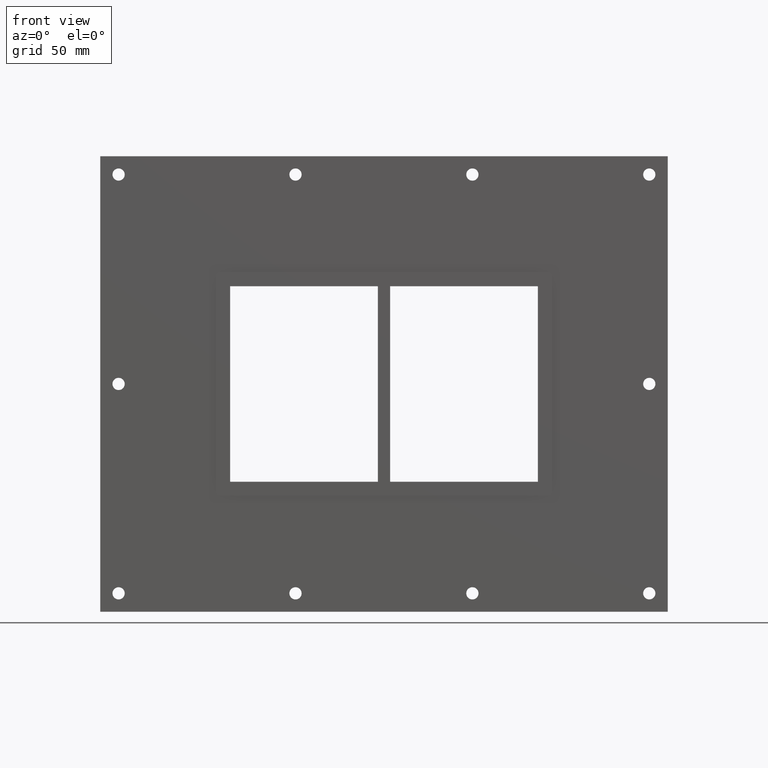
[diagram: clean part render]
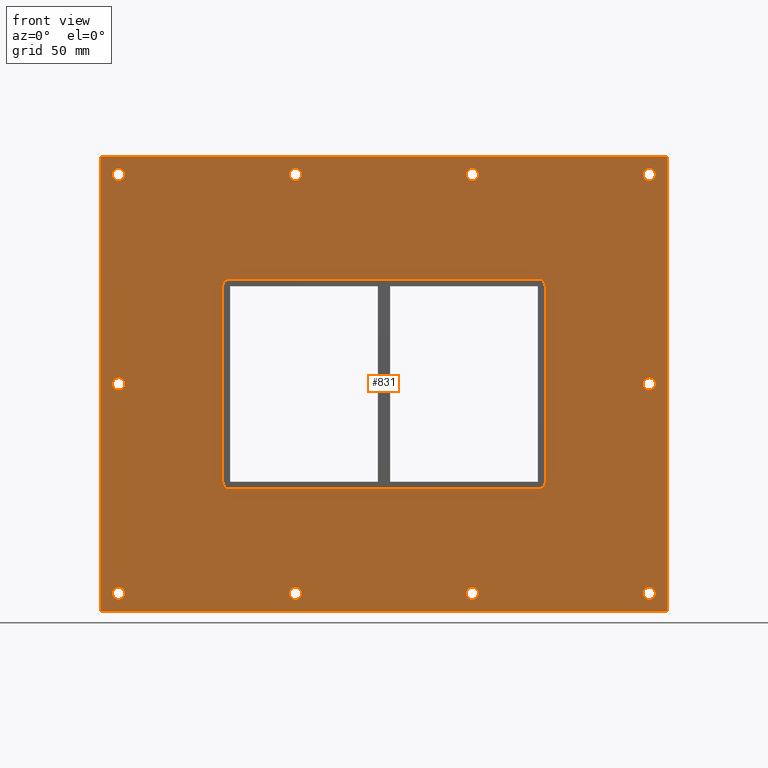
[diagram: same view with one face highlighted and labeled with its STEP entity id]
A machine part, front view. The second image highlights one B-rep face of the part: STEP entity #831.
In plain terms, the highlighted planar face has unit normal (0, 1, 0).
Its self-contained STEP definition (entity closure, byte-faithful):
#84=CARTESIAN_POINT('',(-211.50000000000011,0.0,-170.75));
#85=VERTEX_POINT('',#84);
#86=CARTESIAN_POINT('',(-216.50000000000011,0.0,-170.75));
#87=DIRECTION('',(0.0,1.0,0.0));
#88=DIRECTION('',(1.0,0.0,0.0));
#89=AXIS2_PLACEMENT_3D('',#86,#87,#88);
#90=CIRCLE('',#89,5.0);
#91=EDGE_CURVE('',#85,#85,#90,.T.);
#112=CARTESIAN_POINT('',(221.39999999999992,0.0,0.050000000000026));
#113=VERTEX_POINT('',#112);
#114=CARTESIAN_POINT('',(216.39999999999992,0.0,0.050000000000026));
#115=DIRECTION('',(0.0,1.0,0.0));
#116=DIRECTION('',(1.0,0.0,0.0));
#117=AXIS2_PLACEMENT_3D('',#114,#115,#116);
#118=CIRCLE('',#117,5.0);
#119=EDGE_CURVE('',#113,#113,#118,.T.);
#140=CARTESIAN_POINT('',(-211.50000000000011,0.0,0.050000000000026));
#141=VERTEX_POINT('',#140);
#142=CARTESIAN_POINT('',(-216.50000000000011,0.0,0.050000000000026));
#143=DIRECTION('',(0.0,1.0,0.0));
#144=DIRECTION('',(1.0,0.0,0.0));
#145=AXIS2_PLACEMENT_3D('',#142,#143,#144);
#146=CIRCLE('',#145,5.0);
#147=EDGE_CURVE('',#141,#141,#146,.T.);
#168=CARTESIAN_POINT('',(-67.200000000000102,0.0,170.85000000000005));
#169=VERTEX_POINT('',#168);
#170=CARTESIAN_POINT('',(-72.200000000000102,0.0,170.85000000000005));
#171=DIRECTION('',(0.0,1.0,0.0));
#172=DIRECTION('',(1.0,0.0,0.0));
#173=AXIS2_PLACEMENT_3D('',#170,#171,#172);
#174=CIRCLE('',#173,5.0);
#175=EDGE_CURVE('',#169,#169,#174,.T.);
#196=CARTESIAN_POINT('',(-67.200000000000102,0.0,-170.75));
#197=VERTEX_POINT('',#196);
#198=CARTESIAN_POINT('',(-72.200000000000102,0.0,-170.75));
#199=DIRECTION('',(0.0,1.0,0.0));
#200=DIRECTION('',(1.0,0.0,0.0));
#201=AXIS2_PLACEMENT_3D('',#198,#199,#200);
#202=CIRCLE('',#201,5.0);
#203=EDGE_CURVE('',#197,#197,#202,.T.);
#224=CARTESIAN_POINT('',(77.099999999999923,0.0,170.85000000000005));
#225=VERTEX_POINT('',#224);
#226=CARTESIAN_POINT('',(72.099999999999923,0.0,170.85000000000005));
#227=DIRECTION('',(0.0,1.0,0.0));
#228=DIRECTION('',(1.0,0.0,0.0));
#229=AXIS2_PLACEMENT_3D('',#226,#227,#228);
#230=CIRCLE('',#229,5.0);
#231=EDGE_CURVE('',#225,#225,#230,.T.);
#252=CARTESIAN_POINT('',(77.099999999999923,0.0,-170.75));
#253=VERTEX_POINT('',#252);
#254=CARTESIAN_POINT('',(72.099999999999923,0.0,-170.75));
#255=DIRECTION('',(0.0,1.0,0.0));
#256=DIRECTION('',(1.0,0.0,0.0));
#257=AXIS2_PLACEMENT_3D('',#254,#255,#256);
#258=CIRCLE('',#257,5.0);
#259=EDGE_CURVE('',#253,#253,#258,.T.);
#280=CARTESIAN_POINT('',(221.39999999999992,0.0,-170.75));
#281=VERTEX_POINT('',#280);
#282=CARTESIAN_POINT('',(216.39999999999992,0.0,-170.75));
#283=DIRECTION('',(0.0,1.0,0.0));
#284=DIRECTION('',(1.0,0.0,0.0));
#285=AXIS2_PLACEMENT_3D('',#282,#283,#284);
#286=CIRCLE('',#285,5.0);
#287=EDGE_CURVE('',#281,#281,#286,.T.);
#308=CARTESIAN_POINT('',(-211.50000000000011,0.0,170.85000000000005));
#309=VERTEX_POINT('',#308);
#310=CARTESIAN_POINT('',(-216.50000000000011,0.0,170.85000000000005));
#311=DIRECTION('',(0.0,1.0,0.0));
#312=DIRECTION('',(1.0,0.0,0.0));
#313=AXIS2_PLACEMENT_3D('',#310,#311,#312);
#314=CIRCLE('',#313,5.0);
#315=EDGE_CURVE('',#309,#309,#314,.T.);
#336=CARTESIAN_POINT('',(221.39999999999992,0.0,170.85000000000005));
#337=VERTEX_POINT('',#336);
#338=CARTESIAN_POINT('',(216.39999999999992,0.0,170.85000000000005));
#339=DIRECTION('',(0.0,1.0,0.0));
#340=DIRECTION('',(1.0,0.0,0.0));
#341=AXIS2_PLACEMENT_3D('',#338,#339,#340);
#342=CIRCLE('',#341,5.0);
#343=EDGE_CURVE('',#337,#337,#342,.T.);
#692=CARTESIAN_POINT('',(-4.087004E-014,0.0,1.812544E-014));
#693=DIRECTION('',(0.0,1.0,0.0));
#694=DIRECTION('',(0.0,0.0,1.0));
#695=AXIS2_PLACEMENT_3D('',#692,#693,#694);
#696=PLANE('',#695);
#697=CARTESIAN_POINT('',(-231.50000000000006,0.0,185.75000000000003));
#698=VERTEX_POINT('',#697);
#699=CARTESIAN_POINT('',(231.5,0.0,185.75000000000003));
#700=VERTEX_POINT('',#699);
#701=CARTESIAN_POINT('',(-231.50000000000006,0.0,185.75000000000003));
#702=DIRECTION('',(1.0,0.0,0.0));
#703=VECTOR('',#702,463.00000000000006);
#704=LINE('',#701,#703);
#705=EDGE_CURVE('',#698,#700,#704,.T.);
#706=ORIENTED_EDGE('',*,*,#705,.F.);
#707=CARTESIAN_POINT('',(-231.50000000000006,0.0,-185.75));
#708=VERTEX_POINT('',#707);
#709=CARTESIAN_POINT('',(-231.50000000000006,0.0,-185.75));
#710=DIRECTION('',(0.0,0.0,1.0));
#711=VECTOR('',#710,371.50000000000006);
#712=LINE('',#709,#711);
#713=EDGE_CURVE('',#708,#698,#712,.T.);
#714=ORIENTED_EDGE('',*,*,#713,.F.);
#715=CARTESIAN_POINT('',(231.5,0.0,-185.75));
#716=VERTEX_POINT('',#715);
#717=CARTESIAN_POINT('',(231.5,0.0,-185.75));
#718=DIRECTION('',(-1.0,0.0,0.0));
#719=VECTOR('',#718,463.00000000000006);
#720=LINE('',#717,#719);
#721=EDGE_CURVE('',#716,#708,#720,.T.);
#722=ORIENTED_EDGE('',*,*,#721,.F.);
#723=CARTESIAN_POINT('',(231.5,0.0,185.75000000000003));
#724=DIRECTION('',(0.0,0.0,-1.0));
#725=VECTOR('',#724,371.50000000000006);
#726=LINE('',#723,#725);
#727=EDGE_CURVE('',#700,#716,#726,.T.);
#728=ORIENTED_EDGE('',*,*,#727,.F.);
#729=EDGE_LOOP('',(#706,#714,#722,#728));
#730=FACE_OUTER_BOUND('',#729,.T.);
#731=ORIENTED_EDGE('',*,*,#91,.T.);
#732=EDGE_LOOP('',(#731));
#733=FACE_BOUND('',#732,.T.);
#734=ORIENTED_EDGE('',*,*,#119,.T.);
#735=EDGE_LOOP('',(#734));
#736=FACE_BOUND('',#735,.T.);
#737=ORIENTED_EDGE('',*,*,#147,.T.);
#738=EDGE_LOOP('',(#737));
#739=FACE_BOUND('',#738,.T.);
#740=ORIENTED_EDGE('',*,*,#175,.T.);
#741=EDGE_LOOP('',(#740));
#742=FACE_BOUND('',#741,.T.);
#743=ORIENTED_EDGE('',*,*,#203,.T.);
#744=EDGE_LOOP('',(#743));
#745=FACE_BOUND('',#744,.T.);
#746=ORIENTED_EDGE('',*,*,#231,.T.);
#747=EDGE_LOOP('',(#746));
#748=FACE_BOUND('',#747,.T.);
#749=ORIENTED_EDGE('',*,*,#259,.T.);
#750=EDGE_LOOP('',(#749));
#751=FACE_BOUND('',#750,.T.);
#752=ORIENTED_EDGE('',*,*,#287,.T.);
#753=EDGE_LOOP('',(#752));
#754=FACE_BOUND('',#753,.T.);
#755=ORIENTED_EDGE('',*,*,#315,.T.);
#756=EDGE_LOOP('',(#755));
#757=FACE_BOUND('',#756,.T.);
#758=ORIENTED_EDGE('',*,*,#343,.T.);
#759=EDGE_LOOP('',(#758));
#760=FACE_BOUND('',#759,.T.);
#761=CARTESIAN_POINT('',(-131.5,0.0,-79.750000000000028));
#762=VERTEX_POINT('',#761);
#763=CARTESIAN_POINT('',(-125.5,0.0,-85.750000000000014));
#764=VERTEX_POINT('',#763);
#765=CARTESIAN_POINT('',(-125.5,0.0,-79.750000000000028));
#766=DIRECTION('',(0.0,-1.0,0.0));
#767=DIRECTION('',(-0.707106781186547,0.0,-0.707106781186548));
#768=AXIS2_PLACEMENT_3D('',#765,#766,#767);
#769=CIRCLE('',#768,6.0);
#770=EDGE_CURVE('',#762,#764,#769,.T.);
#771=ORIENTED_EDGE('',*,*,#770,.F.);
#772=CARTESIAN_POINT('',(-131.5,0.0,79.750000000000028));
#773=VERTEX_POINT('',#772);
#774=CARTESIAN_POINT('',(-131.5,0.0,79.750000000000028));
#775=DIRECTION('',(0.0,0.0,-1.0));
#776=VECTOR('',#775,159.50000000000006);
#777=LINE('',#774,#776);
#778=EDGE_CURVE('',#773,#762,#777,.T.);
#779=ORIENTED_EDGE('',*,*,#778,.F.);
#780=CARTESIAN_POINT('',(-125.49999999999997,0.0,85.750000000000014));
#781=VERTEX_POINT('',#780);
#782=CARTESIAN_POINT('',(-125.49999999999997,0.0,79.750000000000028));
#783=DIRECTION('',(0.0,-1.0,0.0));
#784=DIRECTION('',(-0.707106781186549,0.0,0.707106781186546));
#785=AXIS2_PLACEMENT_3D('',#782,#783,#784);
#786=CIRCLE('',#785,6.000000000000001);
#787=EDGE_CURVE('',#781,#773,#786,.T.);
#788=ORIENTED_EDGE('',*,*,#787,.F.);
#789=CARTESIAN_POINT('',(125.50000000000004,0.0,85.750000000000014));
#790=VERTEX_POINT('',#789);
#791=CARTESIAN_POINT('',(125.50000000000004,0.0,85.750000000000014));
#792=DIRECTION('',(-1.0,0.0,0.0));
#793=VECTOR('',#792,251.0);
#794=LINE('',#791,#793);
#795=EDGE_CURVE('',#790,#781,#794,.T.);
#796=ORIENTED_EDGE('',*,*,#795,.F.);
#797=CARTESIAN_POINT('',(131.50000000000003,0.0,79.750000000000014));
#798=VERTEX_POINT('',#797);
#799=CARTESIAN_POINT('',(125.50000000000004,0.0,79.750000000000014));
#800=DIRECTION('',(0.0,-1.0,0.0));
#801=DIRECTION('',(0.707106781186545,0.0,0.70710678118655));
#802=AXIS2_PLACEMENT_3D('',#799,#800,#801);
#803=CIRCLE('',#802,6.000000000000001);
#804=EDGE_CURVE('',#798,#790,#803,.T.);
#805=ORIENTED_EDGE('',*,*,#804,.F.);
#806=CARTESIAN_POINT('',(131.50000000000003,0.0,-79.750000000000028));
#807=VERTEX_POINT('',#806);
#808=CARTESIAN_POINT('',(131.50000000000003,0.0,-79.750000000000014));
#809=DIRECTION('',(0.0,0.0,1.0));
#810=VECTOR('',#809,159.50000000000003);
#811=LINE('',#808,#810);
#812=EDGE_CURVE('',#807,#798,#811,.T.);
#813=ORIENTED_EDGE('',*,*,#812,.F.);
#814=CARTESIAN_POINT('',(125.5,0.0,-85.750000000000014));
#815=VERTEX_POINT('',#814);
#816=CARTESIAN_POINT('',(125.5,0.0,-79.750000000000028));
#817=DIRECTION('',(0.0,-1.0,0.0));
#818=DIRECTION('',(0.707106781186549,0.0,-0.707106781186546));
#819=AXIS2_PLACEMENT_3D('',#816,#817,#818);
#820=CIRCLE('',#819,6.000000000000001);
#821=EDGE_CURVE('',#815,#807,#820,.T.);
#822=ORIENTED_EDGE('',*,*,#821,.F.);
#823=CARTESIAN_POINT('',(-125.5,0.0,-85.750000000000014));
#824=DIRECTION('',(1.0,0.0,0.0));
#825=VECTOR('',#824,251.0);
#826=LINE('',#823,#825);
#827=EDGE_CURVE('',#764,#815,#826,.T.);
#828=ORIENTED_EDGE('',*,*,#827,.F.);
#829=EDGE_LOOP('',(#771,#779,#788,#796,#805,#813,#822,#828));
#830=FACE_BOUND('',#829,.T.);
#831=ADVANCED_FACE('',(#730,#733,#736,#739,#742,#745,#748,#751,#754,#757,#760,#830),#696,.F.);